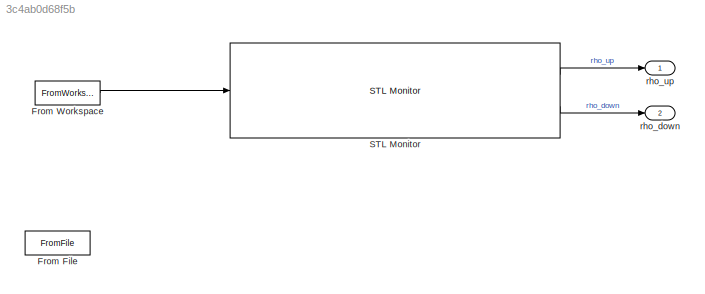
MODEL slx_3c4ab0d68f5b
KIND model
CONFIG AbsTol = auto
CONFIG EnableMultiTasking = off
CONFIG FixedStep = auto
CONFIG MaxStep = auto
CONFIG MinStep = auto
CONFIG RelTol = 1e-3
CONFIG SampleTimeConstraint = Unconstrained
CONFIG SolverName = VariableStepAuto
CONFIG StartTime = 0.0
CONFIG StopTime = 40.0
BLOCK [FromFile] From File
  Commented = on
  FileName = AFDiff.mat
  SampleTime = 0
BLOCK [FromWorkspace] From Workspace
  VariableName = input
BLOCK [Reference] STL Monitor  REF=slstlib/STL Monitor
  Ports = [1, 2]
  SourceBlock = slstlib/STL Monitor
  SourceProductName = Breach Library
BLOCK [Outport] rho_down
  Port = 2
  SignalName = rho_down
BLOCK [Outport] rho_up
  SignalName = rho_up
LINE From Workspace:1 -> STL Monitor:1
LINE STL Monitor:1 -> rho_up:1
LINE STL Monitor:2 -> rho_down:1
